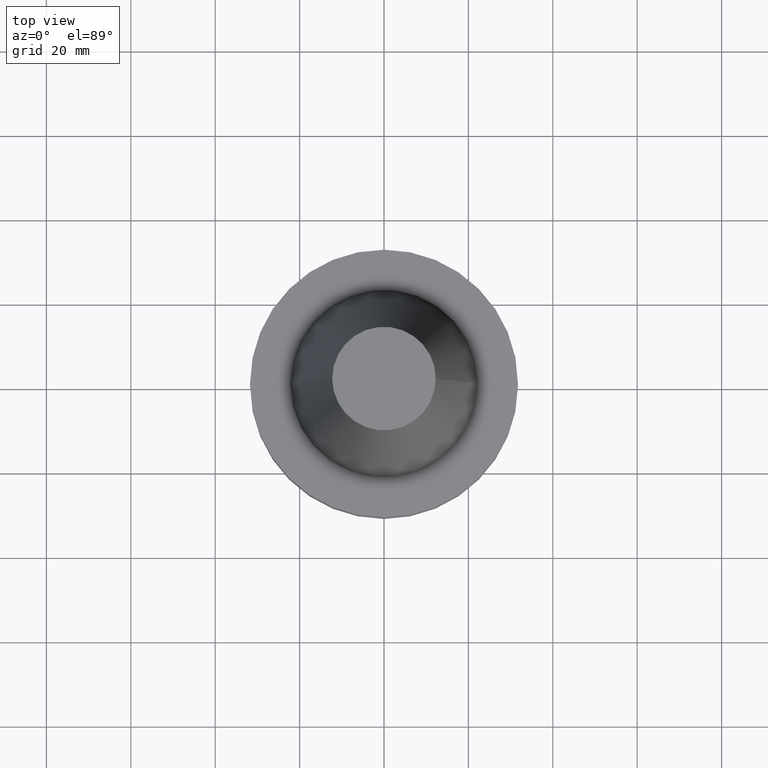
[diagram: clean part render]
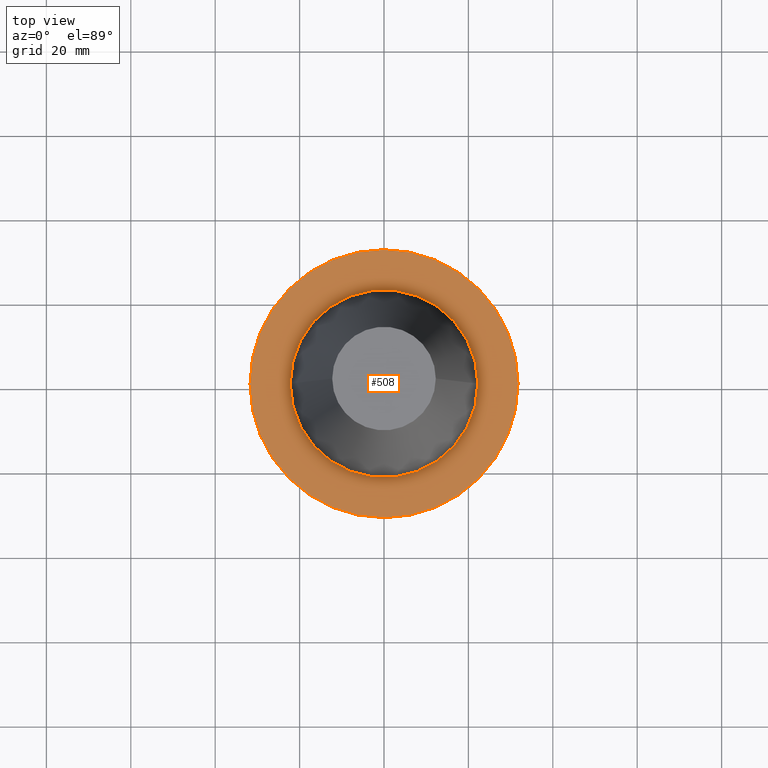
[diagram: same view with one face highlighted and labeled with its STEP entity id]
A machine part, top view. The second image highlights one B-rep face of the part: STEP entity #508.
In plain terms, the highlighted planar face has unit normal (0, 0, -1).
Its self-contained STEP definition (entity closure, byte-faithful):
#15 = DIRECTION ( 'NONE',  ( -1.000000000000000000, 0.000000000000000000, -0.000000000000000000 ) ) ;
#17 = DIRECTION ( 'NONE',  ( -0.000000000000000000, -0.000000000000000000, 1.000000000000000000 ) ) ;
#40 = EDGE_CURVE ( 'NONE', #170, #693, #245, .T. ) ;
#66 = CARTESIAN_POINT ( 'NONE',  ( 0.000000000000000000, 0.000000000000000000, -1.000000000000000888 ) ) ;
#85 = AXIS2_PLACEMENT_3D ( 'NONE', #105, #516, #217 ) ;
#90 = CARTESIAN_POINT ( 'NONE',  ( 0.000000000000000000, 31.75000000000000000, -0.9999999999999995559 ) ) ;
#91 = EDGE_LOOP ( 'NONE', ( #252, #246 ) ) ;
#93 = FACE_OUTER_BOUND ( 'NONE', #91, .T. ) ;
#100 = AXIS2_PLACEMENT_3D ( 'NONE', #90, #548, #15 ) ;
#105 = CARTESIAN_POINT ( 'NONE',  ( 0.000000000000000000, 0.000000000000000000, -1.000000000000000888 ) ) ;
#113 = EDGE_LOOP ( 'NONE', ( #165, #572 ) ) ;
#127 = DIRECTION ( 'NONE',  ( 1.000000000000000000, 0.000000000000000000, 0.000000000000000000 ) ) ;
#136 = EDGE_CURVE ( 'NONE', #317, #287, #441, .T. ) ;
#143 = CARTESIAN_POINT ( 'NONE',  ( 0.000000000000000000, 0.000000000000000000, -1.000000000000000888 ) ) ;
#159 = CIRCLE ( 'NONE', #756, 31.75000000000000000 ) ;
#165 = ORIENTED_EDGE ( 'NONE', *, *, #40, .F. ) ;
#170 = VERTEX_POINT ( 'NONE', #434 ) ;
#217 = DIRECTION ( 'NONE',  ( 1.000000000000000000, 0.000000000000000000, 0.000000000000000000 ) ) ;
#245 = CIRCLE ( 'NONE', #85, 22.22500000000000142 ) ;
#246 = ORIENTED_EDGE ( 'NONE', *, *, #136, .T. ) ;
#252 = ORIENTED_EDGE ( 'NONE', *, *, #576, .T. ) ;
#283 = CARTESIAN_POINT ( 'NONE',  ( 31.75000000000000000, 0.000000000000000000, -1.000000000000000888 ) ) ;
#287 = VERTEX_POINT ( 'NONE', #283 ) ;
#309 = DIRECTION ( 'NONE',  ( -0.000000000000000000, -0.000000000000000000, 1.000000000000000000 ) ) ;
#317 = VERTEX_POINT ( 'NONE', #318 ) ;
#318 = CARTESIAN_POINT ( 'NONE',  ( -31.75000000000000000, 3.888253587292846476E-15, -1.000000000000000888 ) ) ;
#349 = FACE_BOUND ( 'NONE', #113, .T. ) ;
#368 = DIRECTION ( 'NONE',  ( 1.000000000000000000, 0.000000000000000000, 0.000000000000000000 ) ) ;
#431 = CARTESIAN_POINT ( 'NONE',  ( 0.000000000000000000, 0.000000000000000000, -1.000000000000000888 ) ) ;
#434 = CARTESIAN_POINT ( 'NONE',  ( 22.22500000000000142, 0.000000000000000000, -1.000000000000000888 ) ) ;
#441 = CIRCLE ( 'NONE', #764, 31.75000000000000000 ) ;
#508 = ADVANCED_FACE ( 'NONE', ( #349, #93 ), #745, .F. ) ;
#516 = DIRECTION ( 'NONE',  ( -0.000000000000000000, -0.000000000000000000, 1.000000000000000000 ) ) ;
#548 = DIRECTION ( 'NONE',  ( 0.000000000000000000, 0.000000000000000000, -1.000000000000000000 ) ) ;
#572 = ORIENTED_EDGE ( 'NONE', *, *, #622, .F. ) ;
#576 = EDGE_CURVE ( 'NONE', #287, #317, #159, .T. ) ;
#622 = EDGE_CURVE ( 'NONE', #693, #170, #656, .T. ) ;
#624 = DIRECTION ( 'NONE',  ( -0.000000000000000000, -0.000000000000000000, 1.000000000000000000 ) ) ;
#635 = CARTESIAN_POINT ( 'NONE',  ( -22.22500000000000142, 2.721777511104992849E-15, -1.000000000000000888 ) ) ;
#656 = CIRCLE ( 'NONE', #769, 22.22500000000000142 ) ;
#674 = DIRECTION ( 'NONE',  ( 1.000000000000000000, 0.000000000000000000, 0.000000000000000000 ) ) ;
#693 = VERTEX_POINT ( 'NONE', #635 ) ;
#745 = PLANE ( 'NONE',  #100 ) ;
#756 = AXIS2_PLACEMENT_3D ( 'NONE', #431, #309, #674 ) ;
#764 = AXIS2_PLACEMENT_3D ( 'NONE', #66, #17, #127 ) ;
#769 = AXIS2_PLACEMENT_3D ( 'NONE', #143, #624, #368 ) ;